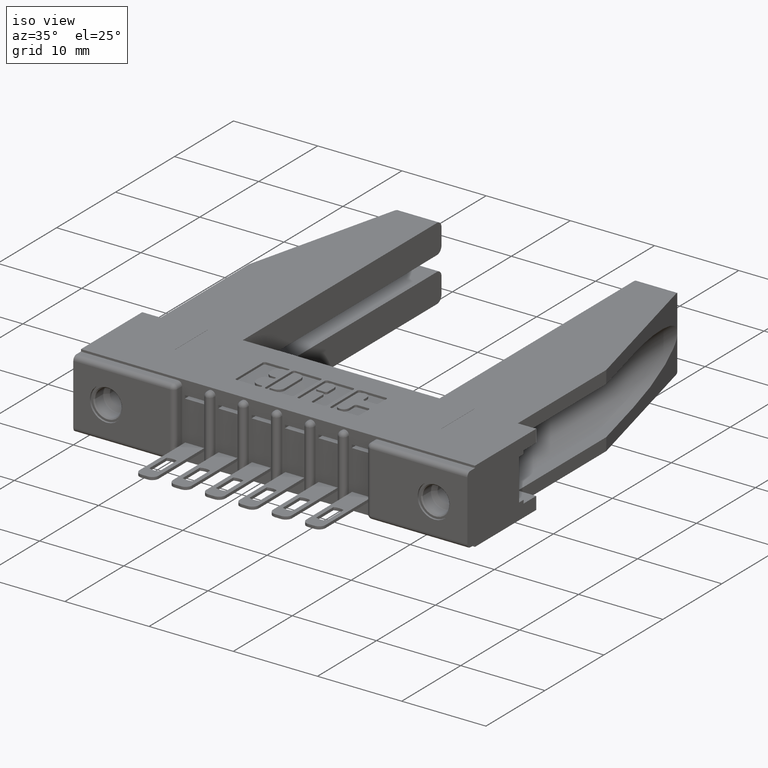
[diagram: clean part render]
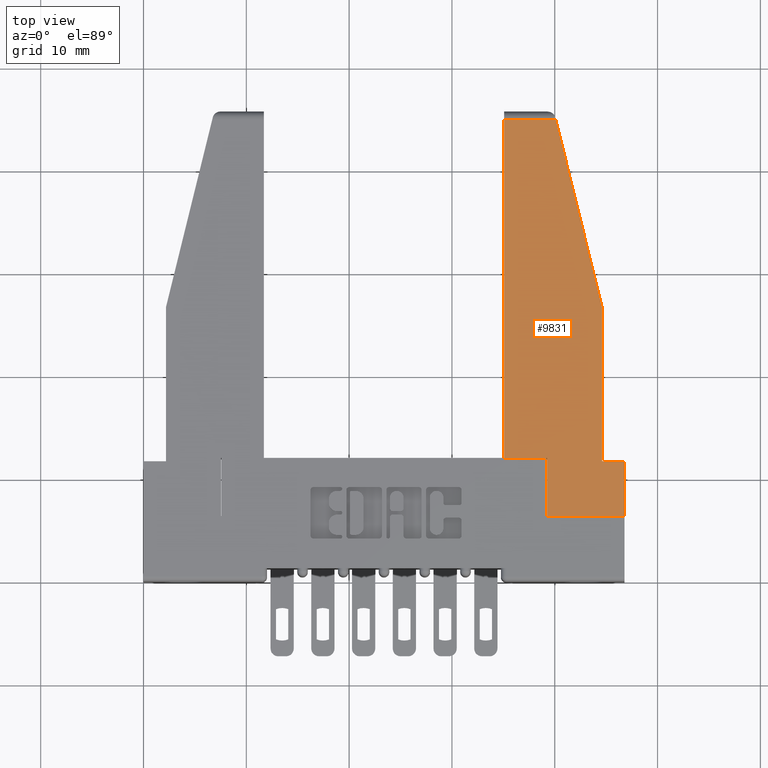
[diagram: tour spotlight — one face highlighted and labeled with its STEP entity id]
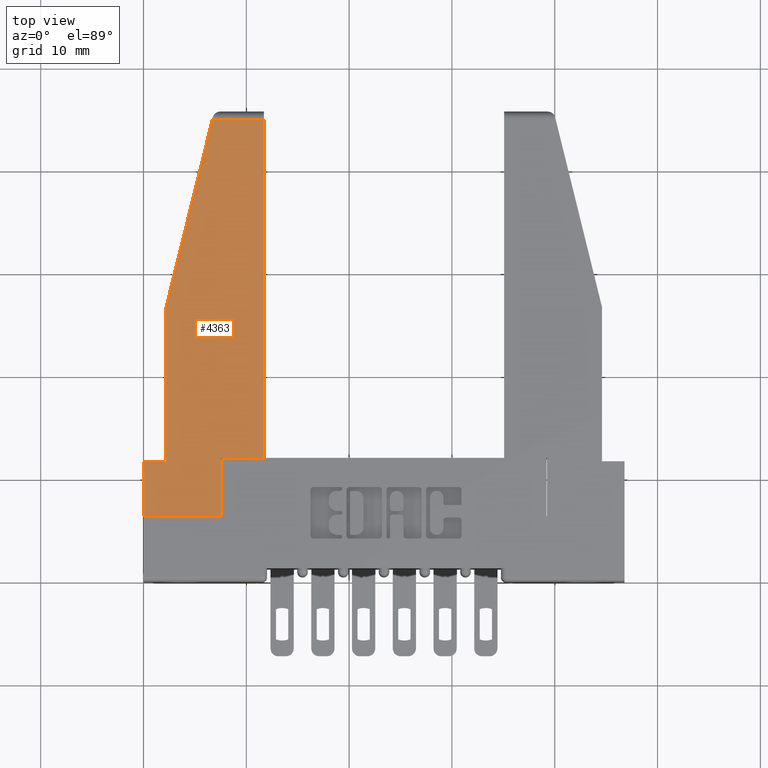
[diagram: tour spotlight — one face highlighted and labeled with its STEP entity id]
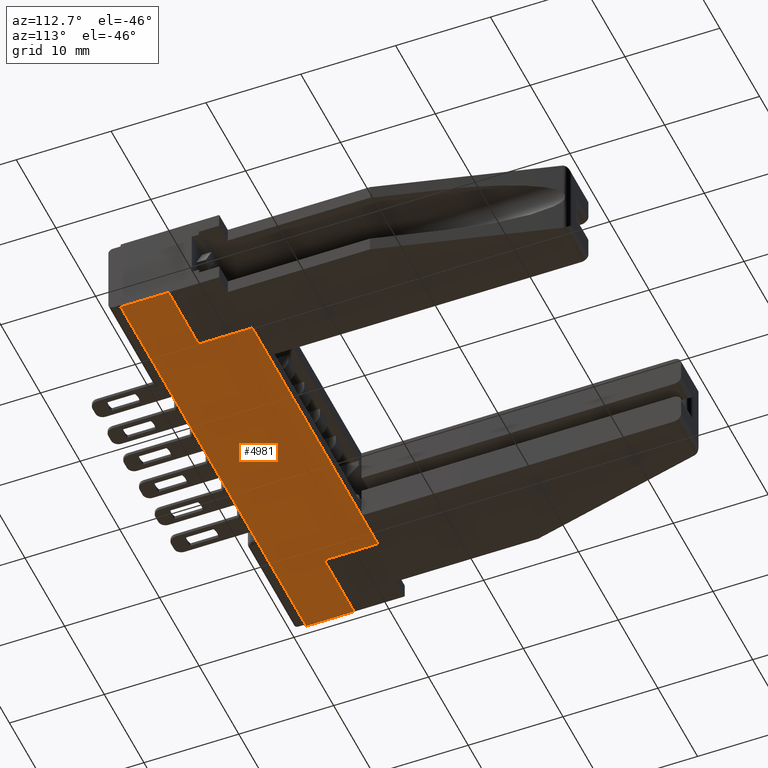
[diagram: tour spotlight — one face highlighted and labeled with its STEP entity id]
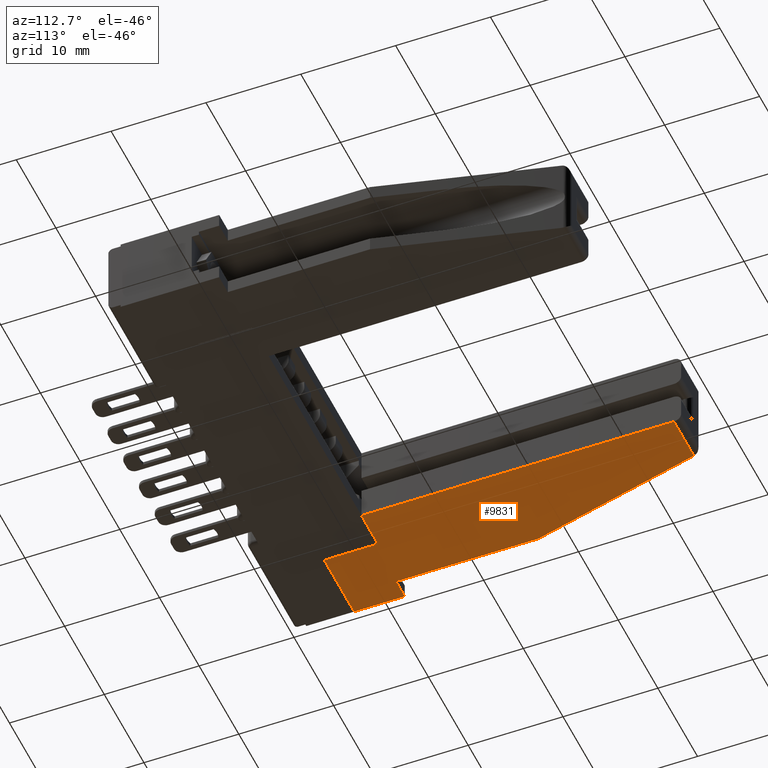
[diagram: tour spotlight — one face highlighted and labeled with its STEP entity id]
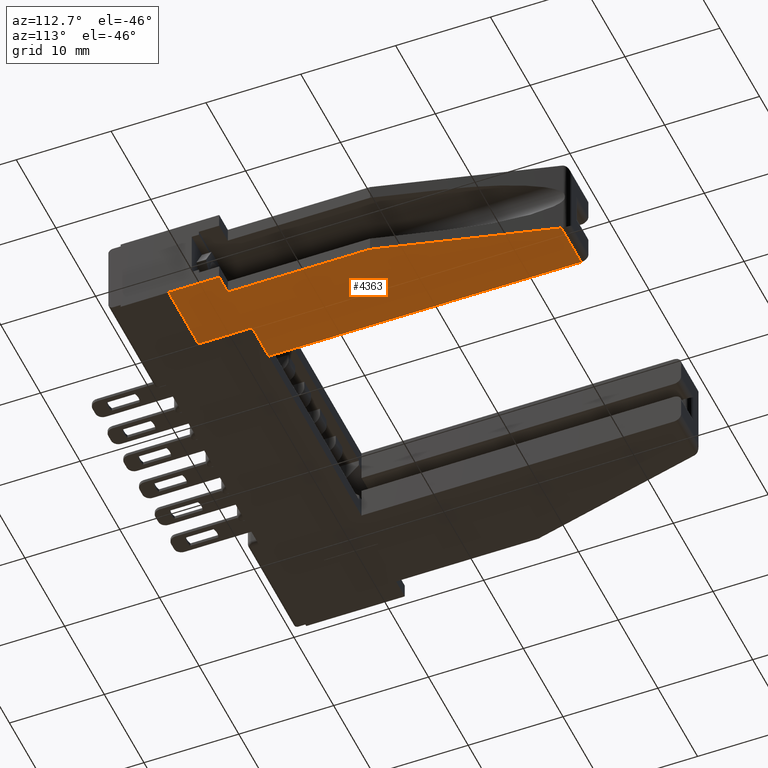
[diagram: tour spotlight — one face highlighted and labeled with its STEP entity id]
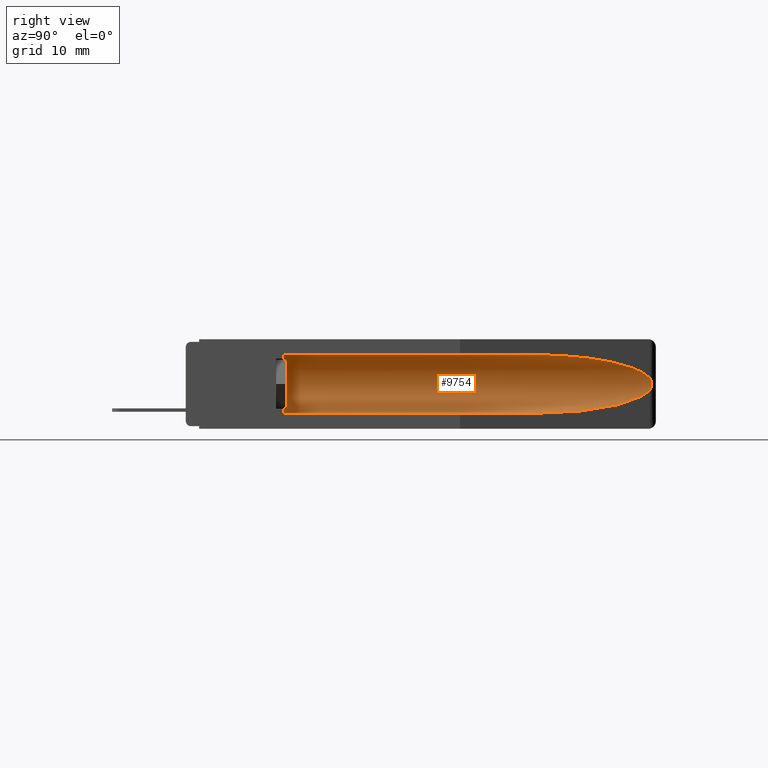
[diagram: tour spotlight — one face highlighted and labeled with its STEP entity id]
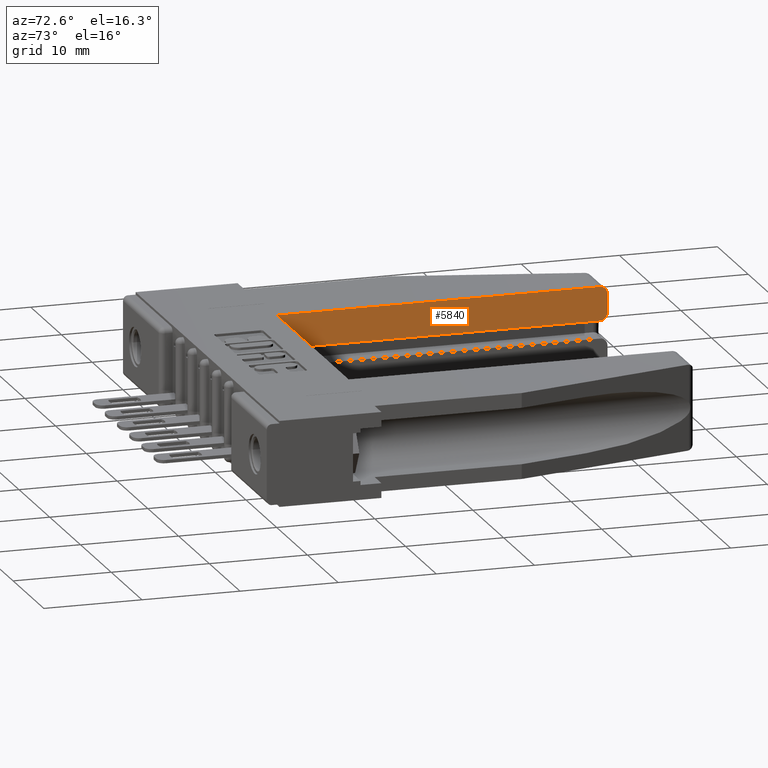
[diagram: tour spotlight — one face highlighted and labeled with its STEP entity id]
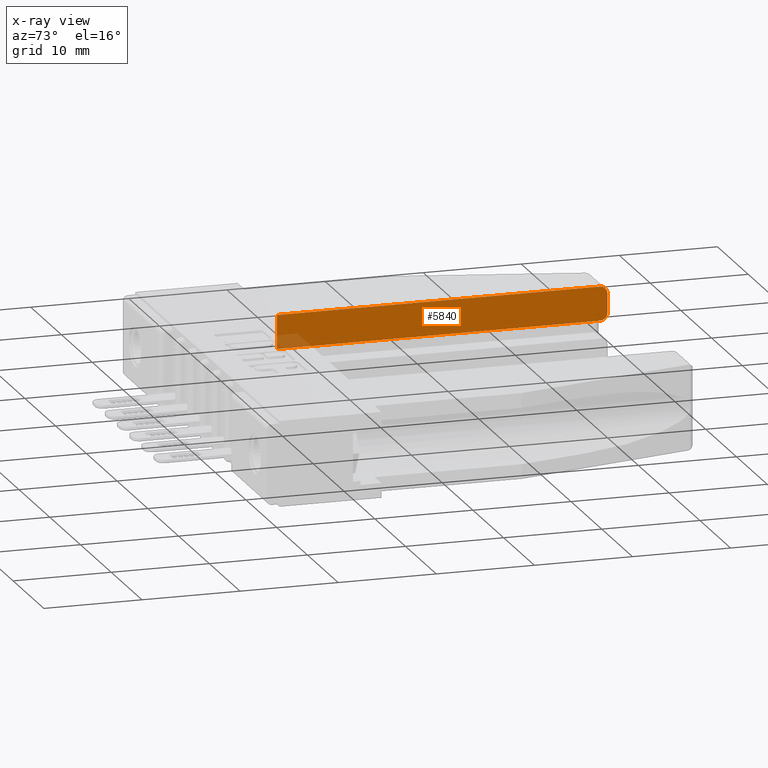
[diagram: x-ray of the same camera — body ghosted, this tour face saturated]
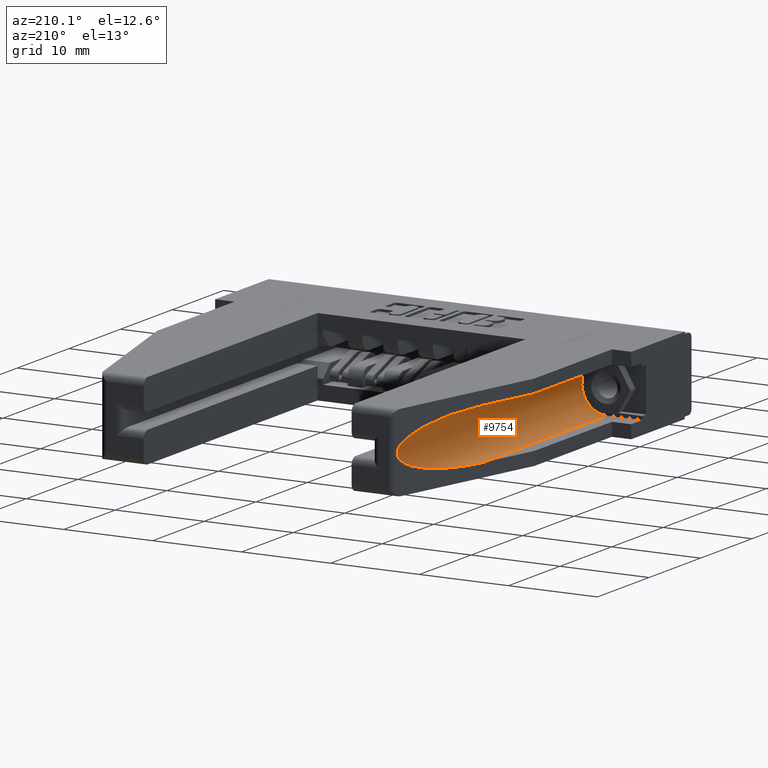
[diagram: tour spotlight — one face highlighted and labeled with its STEP entity id]
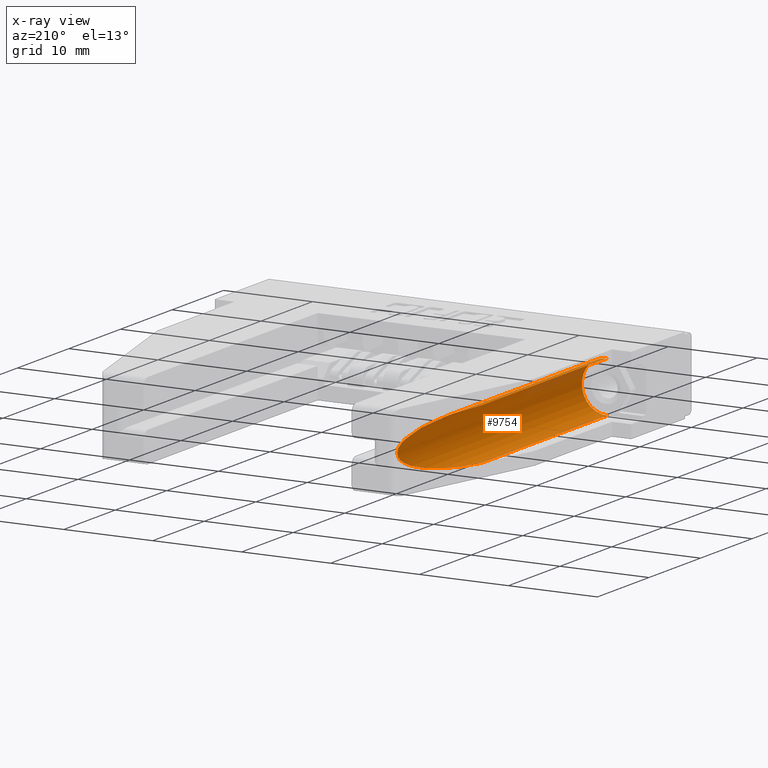
[diagram: x-ray of the same camera — body ghosted, this tour face saturated]
A machine part: a face-by-face anatomy tour. The part has 591 B-rep faces; the first image is the clean iso view, then the 8 largest visible faces are spotlighted one at a time (largest first), each with its STEP entity span.

Face 1 — top view, entity #9831. In plain terms, the highlighted planar face has unit normal (-0, -0, -1).
Definition (entity closure, byte-faithful):
#186 = VERTEX_POINT ( 'NONE', #1350 ) ;
#276 = ORIENTED_EDGE ( 'NONE', *, *, #1737, .T. ) ;
#461 = ORIENTED_EDGE ( 'NONE', *, *, #746, .F. ) ;
#631 = CARTESIAN_POINT ( 'NONE',  ( 0.2969999999999996000, 0.2229999999999990000, -0.3430000000000000300 ) ) ;
#746 = EDGE_CURVE ( 'NONE', #6837, #8287, #9292, .T. ) ;
#1024 = LINE ( 'NONE', #11476, #6672 ) ;
#1074 = CARTESIAN_POINT ( 'NONE',  ( 0.0000000000000000000, 0.0000000000000000000, -0.3430000000000000300 ) ) ;
#1307 = DIRECTION ( 'NONE',  ( 1.000000000000000000, 4.211209965453250600E-016, 2.218671295934087800E-031 ) ) ;
#1350 = CARTESIAN_POINT ( 'NONE',  ( 0.4610000000000025200, 1.519999999999998200, -0.3430000000000000300 ) ) ;
#1418 = ORIENTED_EDGE ( 'NONE', *, *, #6256, .F. ) ;
#1560 = VECTOR ( 'NONE', #1962, 39.37007874015748100 ) ;
#1737 = EDGE_CURVE ( 'NONE', #2661, #186, #1024, .T. ) ;
#1747 = VERTEX_POINT ( 'NONE', #10649 ) ;
#1962 = DIRECTION ( 'NONE',  ( -1.000000000000000000, -4.211209965453250600E-016, -2.218671295934087800E-031 ) ) ;
#2210 = FACE_OUTER_BOUND ( 'NONE', #9894, .T. ) ;
#2338 = DIRECTION ( 'NONE',  ( -0.2394884713086046800, -0.9708992080078484600, -1.641710291813238700E-017 ) ) ;
#2428 = EDGE_CURVE ( 'NONE', #6488, #186, #8681, .T. ) ;
#2471 = DIRECTION ( 'NONE',  ( -2.289879374839175700E-031, 1.690917325168891800E-017, 1.000000000000000000 ) ) ;
#2524 = VECTOR ( 'NONE', #10648, 39.37007874015748100 ) ;
#2661 = VERTEX_POINT ( 'NONE', #6896 ) ;
#2791 = ORIENTED_EDGE ( 'NONE', *, *, #5462, .F. ) ;
#2914 = CARTESIAN_POINT ( 'NONE',  ( 0.0000000000000000000, 0.2099999999999999100, -0.3430000000000000300 ) ) ;
#2964 = CARTESIAN_POINT ( 'NONE',  ( 0.4610000000000025200, 0.2229999999999990000, -0.3430000000000000300 ) ) ;
#3026 = VECTOR ( 'NONE', #3378, 39.37007874015748100 ) ;
#3151 = LINE ( 'NONE', #2914, #1560 ) ;
#3254 = CARTESIAN_POINT ( 'NONE',  ( 0.08600000000000011800, 0.7999999999999976000, -0.3430000000000000300 ) ) ;
#3378 = DIRECTION ( 'NONE',  ( 1.000000000000000000, 4.211209965453250600E-016, 2.218671295934087800E-031 ) ) ;
#3797 = DIRECTION ( 'NONE',  ( -6.795945692587973700E-016, -1.000000000000000000, -1.690917325168897600E-017 ) ) ;
#3805 = ORIENTED_EDGE ( 'NONE', *, *, #4236, .F. ) ;
#4236 = EDGE_CURVE ( 'NONE', #1747, #11291, #3151, .T. ) ;
#4652 = CARTESIAN_POINT ( 'NONE',  ( 0.0000000000000000000, 0.0000000000000000000, -0.3430000000000000300 ) ) ;
#4752 = CARTESIAN_POINT ( 'NONE',  ( 0.0000000000000000000, 0.2099999999999999100, -0.3430000000000000300 ) ) ;
#4761 = LINE ( 'NONE', #4752, #6653 ) ;
#4868 = CARTESIAN_POINT ( 'NONE',  ( 0.08600000000000011800, 0.7999999999999976000, -0.3430000000000000300 ) ) ;
#5181 = LINE ( 'NONE', #631, #3026 ) ;
#5275 = CARTESIAN_POINT ( 'NONE',  ( 0.2969999999999996000, 2.731847993664263200E-016, -0.3430000000000003600 ) ) ;
#5378 = ORIENTED_EDGE ( 'NONE', *, *, #8685, .F. ) ;
#5462 = EDGE_CURVE ( 'NONE', #2661, #11507, #8261, .T. ) ;
#5497 = VECTOR ( 'NONE', #2338, 39.37007874015748900 ) ;
#5748 = DIRECTION ( 'NONE',  ( 4.725876128539996400E-016, 1.000000000000000000, 1.690917325168898200E-017 ) ) ;
#5815 = EDGE_CURVE ( 'NONE', #11291, #9591, #4761, .T. ) ;
#6256 = EDGE_CURVE ( 'NONE', #8287, #6488, #5181, .T. ) ;
#6301 = ORIENTED_EDGE ( 'NONE', *, *, #2428, .F. ) ;
#6488 = VERTEX_POINT ( 'NONE', #10264 ) ;
#6553 = EDGE_CURVE ( 'NONE', #9591, #6837, #10403, .T. ) ;
#6653 = VECTOR ( 'NONE', #3797, 39.37007874015748100 ) ;
#6672 = VECTOR ( 'NONE', #1307, 39.37007874015748100 ) ;
#6837 = VERTEX_POINT ( 'NONE', #10688 ) ;
#6896 = CARTESIAN_POINT ( 'NONE',  ( 0.2635999999999998900, 1.519999999999998900, -0.3430000000000000300 ) ) ;
#7043 = PLANE ( 'NONE',  #11982 ) ;
#7256 = DIRECTION ( 'NONE',  ( 4.211209965453280200E-016, 1.000000000000000000, 1.690917325168898900E-017 ) ) ;
#7905 = CARTESIAN_POINT ( 'NONE',  ( 0.2710000000000004600, 1.549999999999998700, -0.3430000000000000300 ) ) ;
#8261 = LINE ( 'NONE', #7905, #5497 ) ;
#8287 = VERTEX_POINT ( 'NONE', #8351 ) ;
#8351 = CARTESIAN_POINT ( 'NONE',  ( 0.2969999999999996000, 0.2229999999999990000, -0.3430000000000000300 ) ) ;
#8433 = VECTOR ( 'NONE', #7256, 39.37007874015748100 ) ;
#8681 = LINE ( 'NONE', #2964, #10000 ) ;
#8685 = EDGE_CURVE ( 'NONE', #11507, #1747, #10939, .T. ) ;
#8910 = CARTESIAN_POINT ( 'NONE',  ( 0.0000000000000000000, 0.0000000000000000000, -0.3430000000000000300 ) ) ;
#9292 = LINE ( 'NONE', #5275, #8433 ) ;
#9591 = VERTEX_POINT ( 'NONE', #1074 ) ;
#9831 = ADVANCED_FACE ( 'NONE', ( #2210 ), #7043, .F. ) ;
#9894 = EDGE_LOOP ( 'NONE', ( #2791, #276, #6301, #1418, #461, #10361, #10854, #3805, #5378 ) ) ;
#10000 = VECTOR ( 'NONE', #5748, 39.37007874015748100 ) ;
#10037 = CARTESIAN_POINT ( 'NONE',  ( 0.0000000000000000000, 0.2099999999999999100, -0.3430000000000000300 ) ) ;
#10264 = CARTESIAN_POINT ( 'NONE',  ( 0.4610000000000025200, 0.2229999999999990000, -0.3430000000000000300 ) ) ;
#10361 = ORIENTED_EDGE ( 'NONE', *, *, #6553, .F. ) ;
#10403 = LINE ( 'NONE', #4652, #11269 ) ;
#10648 = DIRECTION ( 'NONE',  ( -4.500600642748225000E-016, -1.000000000000000000, -1.690917325168896400E-017 ) ) ;
#10649 = CARTESIAN_POINT ( 'NONE',  ( 0.08600000000000011800, 0.2099999999999999100, -0.3430000000000000300 ) ) ;
#10688 = CARTESIAN_POINT ( 'NONE',  ( 0.2969999999999996000, 2.731847993664263200E-016, -0.3430000000000003600 ) ) ;
#10701 = DIRECTION ( 'NONE',  ( 1.000000000000000000, 4.211209965453250600E-016, 2.218671295934087800E-031 ) ) ;
#10854 = ORIENTED_EDGE ( 'NONE', *, *, #5815, .F. ) ;
#10939 = LINE ( 'NONE', #3254, #2524 ) ;
#11143 = DIRECTION ( 'NONE',  ( 1.000000000000000000, 4.211209965453250600E-016, 2.218671295934087800E-031 ) ) ;
#11269 = VECTOR ( 'NONE', #11143, 39.37007874015748100 ) ;
#11291 = VERTEX_POINT ( 'NONE', #10037 ) ;
#11476 = CARTESIAN_POINT ( 'NONE',  ( 0.4610000000000025200, 1.519999999999998900, -0.3430000000000000300 ) ) ;
#11507 = VERTEX_POINT ( 'NONE', #4868 ) ;
#11982 = AXIS2_PLACEMENT_3D ( 'NONE', #8910, #2471, #10701 ) ;

Face 2 — top view, entity #4363. In plain terms, the highlighted planar face has unit normal (-0, 0, 1).
Definition (entity closure, byte-faithful):
#18 = CARTESIAN_POINT ( 'NONE',  ( 0.2710000000000004600, 1.549999999999998700, -1.365923996832131600E-016 ) ) ;
#81 = CARTESIAN_POINT ( 'NONE',  ( 0.4610000000000025200, 1.519999999999998200, 0.0000000000000000000 ) ) ;
#105 = FACE_OUTER_BOUND ( 'NONE', #2532, .T. ) ;
#752 = CARTESIAN_POINT ( 'NONE',  ( 0.0000000000000000000, 0.0000000000000000000, 0.0000000000000000000 ) ) ;
#786 = CARTESIAN_POINT ( 'NONE',  ( 0.2969999999999996000, 0.0000000000000000000, -2.731847993664263200E-016 ) ) ;
#889 = LINE ( 'NONE', #10769, #3071 ) ;
#985 = EDGE_CURVE ( 'NONE', #2152, #1294, #4368, .T. ) ;
#1142 = VECTOR ( 'NONE', #11417, 39.37007874015748100 ) ;
#1294 = VERTEX_POINT ( 'NONE', #7700 ) ;
#1327 = DIRECTION ( 'NONE',  ( -2.289879374839175700E-031, 1.690917325168891800E-017, 1.000000000000000000 ) ) ;
#1461 = ORIENTED_EDGE ( 'NONE', *, *, #2851, .T. ) ;
#1654 = EDGE_CURVE ( 'NONE', #9925, #11989, #2763, .T. ) ;
#1770 = CARTESIAN_POINT ( 'NONE',  ( 0.0000000000000000000, 0.0000000000000000000, 0.0000000000000000000 ) ) ;
#1887 = VECTOR ( 'NONE', #6921, 39.37007874015748100 ) ;
#2152 = VERTEX_POINT ( 'NONE', #4344 ) ;
#2272 = CARTESIAN_POINT ( 'NONE',  ( 0.0000000000000000000, 0.2099999999999999100, 0.0000000000000000000 ) ) ;
#2326 = CARTESIAN_POINT ( 'NONE',  ( 0.0000000000000000000, 1.519999999999998000, 2.731847993664263200E-016 ) ) ;
#2366 = ORIENTED_EDGE ( 'NONE', *, *, #4472, .T. ) ;
#2532 = EDGE_LOOP ( 'NONE', ( #6196, #2366, #2973, #2562, #11834, #9281, #6772, #1461, #11804 ) ) ;
#2562 = ORIENTED_EDGE ( 'NONE', *, *, #10578, .T. ) ;
#2763 = LINE ( 'NONE', #2272, #1887 ) ;
#2851 = EDGE_CURVE ( 'NONE', #9983, #10402, #3896, .T. ) ;
#2973 = ORIENTED_EDGE ( 'NONE', *, *, #985, .T. ) ;
#3071 = VECTOR ( 'NONE', #3484, 39.37007874015748100 ) ;
#3484 = DIRECTION ( 'NONE',  ( -4.500600642748225000E-016, -1.000000000000000000, -1.690917325168896400E-017 ) ) ;
#3823 = VECTOR ( 'NONE', #5562, 39.37007874015748100 ) ;
#3896 = LINE ( 'NONE', #9663, #1142 ) ;
#4084 = VERTEX_POINT ( 'NONE', #1770 ) ;
#4153 = VECTOR ( 'NONE', #4535, 39.37007874015748100 ) ;
#4160 = VERTEX_POINT ( 'NONE', #81 ) ;
#4168 = CARTESIAN_POINT ( 'NONE',  ( 0.4610000000000025200, 0.2229999999999990000, -1.365923996832131600E-016 ) ) ;
#4344 = CARTESIAN_POINT ( 'NONE',  ( 0.2635999999999998900, 1.519999999999998900, -1.365923996832131600E-016 ) ) ;
#4363 = ADVANCED_FACE ( 'NONE', ( #105 ), #10565, .T. ) ;
#4368 = LINE ( 'NONE', #18, #8575 ) ;
#4472 = EDGE_CURVE ( 'NONE', #4160, #2152, #6225, .T. ) ;
#4497 = VERTEX_POINT ( 'NONE', #4168 ) ;
#4535 = DIRECTION ( 'NONE',  ( 1.000000000000000000, 4.211209965453250600E-016, 2.218671295934087800E-031 ) ) ;
#5008 = CARTESIAN_POINT ( 'NONE',  ( 0.0000000000000000000, 0.0000000000000000000, 0.0000000000000000000 ) ) ;
#5562 = DIRECTION ( 'NONE',  ( 4.725876128539996400E-016, 1.000000000000000000, 1.690917325168898200E-017 ) ) ;
#5639 = DIRECTION ( 'NONE',  ( -0.2394884713086046800, -0.9708992080078484600, -1.641710291813238700E-017 ) ) ;
#5944 = DIRECTION ( 'NONE',  ( 1.000000000000000000, 4.211209965453250600E-016, 2.218671295934087800E-031 ) ) ;
#6102 = DIRECTION ( 'NONE',  ( -1.000000000000000000, -4.211209965453250600E-016, -2.218671295934087800E-031 ) ) ;
#6196 = ORIENTED_EDGE ( 'NONE', *, *, #11343, .T. ) ;
#6225 = LINE ( 'NONE', #2326, #7058 ) ;
#6324 = LINE ( 'NONE', #8145, #8920 ) ;
#6608 = LINE ( 'NONE', #11103, #4153 ) ;
#6717 = DIRECTION ( 'NONE',  ( -6.795945692587973700E-016, -1.000000000000000000, -1.690917325168897600E-017 ) ) ;
#6747 = CARTESIAN_POINT ( 'NONE',  ( 0.0000000000000000000, 0.2099999999999999100, 0.0000000000000000000 ) ) ;
#6772 = ORIENTED_EDGE ( 'NONE', *, *, #8105, .T. ) ;
#6921 = DIRECTION ( 'NONE',  ( -1.000000000000000000, -4.211209965453250600E-016, -2.218671295934087800E-031 ) ) ;
#7058 = VECTOR ( 'NONE', #6102, 39.37007874015748100 ) ;
#7106 = EDGE_CURVE ( 'NONE', #11989, #4084, #6324, .T. ) ;
#7327 = AXIS2_PLACEMENT_3D ( 'NONE', #5008, #1327, #5944 ) ;
#7620 = VECTOR ( 'NONE', #11851, 39.37007874015748100 ) ;
#7700 = CARTESIAN_POINT ( 'NONE',  ( 0.08600000000000011800, 0.7999999999999976000, -1.365923996832131600E-016 ) ) ;
#7958 = CARTESIAN_POINT ( 'NONE',  ( 0.08600000000000011800, 0.2099999999999999100, 0.0000000000000000000 ) ) ;
#8105 = EDGE_CURVE ( 'NONE', #4084, #9983, #10096, .T. ) ;
#8145 = CARTESIAN_POINT ( 'NONE',  ( 0.0000000000000000000, 0.2099999999999999100, 0.0000000000000000000 ) ) ;
#8186 = EDGE_CURVE ( 'NONE', #10402, #4497, #6608, .T. ) ;
#8575 = VECTOR ( 'NONE', #5639, 39.37007874015748900 ) ;
#8743 = LINE ( 'NONE', #9195, #3823 ) ;
#8920 = VECTOR ( 'NONE', #6717, 39.37007874015748100 ) ;
#9195 = CARTESIAN_POINT ( 'NONE',  ( 0.4610000000000025200, 0.2229999999999990000, -1.365923996832131600E-016 ) ) ;
#9281 = ORIENTED_EDGE ( 'NONE', *, *, #7106, .T. ) ;
#9663 = CARTESIAN_POINT ( 'NONE',  ( 0.2969999999999996000, 0.0000000000000000000, -2.731847993664263200E-016 ) ) ;
#9925 = VERTEX_POINT ( 'NONE', #7958 ) ;
#9983 = VERTEX_POINT ( 'NONE', #786 ) ;
#10096 = LINE ( 'NONE', #752, #7620 ) ;
#10402 = VERTEX_POINT ( 'NONE', #11504 ) ;
#10565 = PLANE ( 'NONE',  #7327 ) ;
#10578 = EDGE_CURVE ( 'NONE', #1294, #9925, #889, .T. ) ;
#10769 = CARTESIAN_POINT ( 'NONE',  ( 0.08600000000000011800, 0.7999999999999976000, -1.365923996832131600E-016 ) ) ;
#11103 = CARTESIAN_POINT ( 'NONE',  ( 0.2969999999999996000, 0.2229999999999990000, 2.731847993664263200E-016 ) ) ;
#11343 = EDGE_CURVE ( 'NONE', #4497, #4160, #8743, .T. ) ;
#11417 = DIRECTION ( 'NONE',  ( 4.211209965453280200E-016, 1.000000000000000000, 1.690917325168898900E-017 ) ) ;
#11504 = CARTESIAN_POINT ( 'NONE',  ( 0.2969999999999996000, 0.2229999999999990000, 2.731847993664263200E-016 ) ) ;
#11804 = ORIENTED_EDGE ( 'NONE', *, *, #8186, .T. ) ;
#11834 = ORIENTED_EDGE ( 'NONE', *, *, #1654, .T. ) ;
#11851 = DIRECTION ( 'NONE',  ( 1.000000000000000000, 4.211209965453250600E-016, 2.218671295934087800E-031 ) ) ;
#11989 = VERTEX_POINT ( 'NONE', #6747 ) ;

Face 3 — auxiliary view, entity #4981. In plain terms, the highlighted planar face has unit normal (0, 0, 1).
Definition (entity closure, byte-faithful):
#215 = AXIS2_PLACEMENT_3D ( 'NONE', #3099, #6927, #5110 ) ;
#284 = LINE ( 'NONE', #9947, #4192 ) ;
#313 = FACE_OUTER_BOUND ( 'NONE', #713, .T. ) ;
#702 = VERTEX_POINT ( 'NONE', #9075 ) ;
#713 = EDGE_LOOP ( 'NONE', ( #5163, #4748, #9780, #11826, #3095, #11046, #6590, #5176 ) ) ;
#871 = LINE ( 'NONE', #2761, #9851 ) ;
#969 = EDGE_CURVE ( 'NONE', #11238, #7827, #8991, .T. ) ;
#1124 = CARTESIAN_POINT ( 'NONE',  ( 0.0000000000000000000, 0.2499999999999999700, -0.3430000000000000300 ) ) ;
#1192 = EDGE_CURVE ( 'NONE', #3182, #7055, #3948, .T. ) ;
#1534 = CARTESIAN_POINT ( 'NONE',  ( 0.0000000000000000000, 0.2499999999999999700, -0.3430000000000000300 ) ) ;
#1940 = CARTESIAN_POINT ( 'NONE',  ( 1.544000000000000700, 0.2499999999999999700, -0.3430000000000000300 ) ) ;
#1982 = DIRECTION ( 'NONE',  ( -0.0000000000000000000, 1.000000000000000000, -0.0000000000000000000 ) ) ;
#2663 = EDGE_CURVE ( 'NONE', #11819, #9920, #284, .T. ) ;
#2761 = CARTESIAN_POINT ( 'NONE',  ( 0.4730000000000003600, 0.05099999999999999700, -0.3430000000000001400 ) ) ;
#2939 = EDGE_CURVE ( 'NONE', #11819, #4247, #6498, .T. ) ;
#3095 = ORIENTED_EDGE ( 'NONE', *, *, #2663, .T. ) ;
#3099 = CARTESIAN_POINT ( 'NONE',  ( 0.0000000000000000000, 0.4729999999999999800, -0.3430000000000000300 ) ) ;
#3145 = DIRECTION ( 'NONE',  ( -1.000000000000000000, -0.0000000000000000000, -0.0000000000000000000 ) ) ;
#3182 = VERTEX_POINT ( 'NONE', #4123 ) ;
#3323 = LINE ( 'NONE', #7618, #11587 ) ;
#3507 = CARTESIAN_POINT ( 'NONE',  ( 1.544000000000000700, 0.2499999999999999700, -0.3430000000000000300 ) ) ;
#3948 = LINE ( 'NONE', #7836, #9590 ) ;
#4123 = CARTESIAN_POINT ( 'NONE',  ( 1.842000000000000700, 0.2499999999999999700, -0.3430000000000000300 ) ) ;
#4192 = VECTOR ( 'NONE', #7963, 39.37007874015748100 ) ;
#4247 = VERTEX_POINT ( 'NONE', #6676 ) ;
#4452 = EDGE_CURVE ( 'NONE', #3182, #11238, #10103, .T. ) ;
#4748 = ORIENTED_EDGE ( 'NONE', *, *, #5355, .F. ) ;
#4981 = ADVANCED_FACE ( 'NONE', ( #313 ), #8762, .F. ) ;
#5027 = LINE ( 'NONE', #10516, #7926 ) ;
#5101 = DIRECTION ( 'NONE',  ( -0.0000000000000000000, -1.000000000000000000, -0.0000000000000000000 ) ) ;
#5110 = DIRECTION ( 'NONE',  ( 1.000000000000000000, 0.0000000000000000000, -0.0000000000000000000 ) ) ;
#5163 = ORIENTED_EDGE ( 'NONE', *, *, #1192, .T. ) ;
#5176 = ORIENTED_EDGE ( 'NONE', *, *, #4452, .F. ) ;
#5184 = DIRECTION ( 'NONE',  ( -0.0000000000000000000, -1.000000000000000000, -0.0000000000000000000 ) ) ;
#5355 = EDGE_CURVE ( 'NONE', #702, #7055, #871, .T. ) ;
#5513 = EDGE_CURVE ( 'NONE', #4247, #702, #3323, .T. ) ;
#5666 = CARTESIAN_POINT ( 'NONE',  ( 0.2979999999999998200, 0.2499999999999999700, -0.3430000000000000300 ) ) ;
#5667 = DIRECTION ( 'NONE',  ( 1.000000000000000000, 0.0000000000000000000, 0.0000000000000000000 ) ) ;
#5896 = CARTESIAN_POINT ( 'NONE',  ( 1.544000000000000700, 0.4729999999999999800, -0.3430000000000000300 ) ) ;
#6498 = LINE ( 'NONE', #1124, #12016 ) ;
#6590 = ORIENTED_EDGE ( 'NONE', *, *, #969, .F. ) ;
#6676 = CARTESIAN_POINT ( 'NONE',  ( 0.0000000000000000000, 0.2499999999999999700, -0.3430000000000000300 ) ) ;
#6927 = DIRECTION ( 'NONE',  ( 0.0000000000000000000, 0.0000000000000000000, 1.000000000000000000 ) ) ;
#7055 = VERTEX_POINT ( 'NONE', #9385 ) ;
#7083 = CARTESIAN_POINT ( 'NONE',  ( 0.2979999999999998200, 0.4729999999999999800, -0.3430000000000000300 ) ) ;
#7618 = CARTESIAN_POINT ( 'NONE',  ( 0.0000000000000000000, 0.4729999999999999800, -0.3430000000000000300 ) ) ;
#7820 = EDGE_CURVE ( 'NONE', #7827, #9920, #5027, .T. ) ;
#7827 = VERTEX_POINT ( 'NONE', #5896 ) ;
#7836 = CARTESIAN_POINT ( 'NONE',  ( 1.842000000000000700, 0.4729999999999999800, -0.3430000000000000300 ) ) ;
#7926 = VECTOR ( 'NONE', #3145, 39.37007874015748100 ) ;
#7963 = DIRECTION ( 'NONE',  ( -0.0000000000000000000, 1.000000000000000000, -0.0000000000000000000 ) ) ;
#8570 = DIRECTION ( 'NONE',  ( -1.000000000000000000, 0.0000000000000000000, 0.0000000000000000000 ) ) ;
#8762 = PLANE ( 'NONE',  #215 ) ;
#8991 = LINE ( 'NONE', #1940, #11032 ) ;
#9075 = CARTESIAN_POINT ( 'NONE',  ( 0.0000000000000000000, 0.05099999999999999700, -0.3430000000000000300 ) ) ;
#9385 = CARTESIAN_POINT ( 'NONE',  ( 1.842000000000000700, 0.05099999999999999700, -0.3430000000000000300 ) ) ;
#9590 = VECTOR ( 'NONE', #5184, 39.37007874015748100 ) ;
#9780 = ORIENTED_EDGE ( 'NONE', *, *, #5513, .F. ) ;
#9851 = VECTOR ( 'NONE', #5667, 39.37007874015748100 ) ;
#9920 = VERTEX_POINT ( 'NONE', #7083 ) ;
#9947 = CARTESIAN_POINT ( 'NONE',  ( 0.2979999999999998200, 0.2499999999999999700, -0.3430000000000000300 ) ) ;
#10103 = LINE ( 'NONE', #1534, #10822 ) ;
#10516 = CARTESIAN_POINT ( 'NONE',  ( 0.0000000000000000000, 0.4729999999999999800, -0.3430000000000000300 ) ) ;
#10761 = DIRECTION ( 'NONE',  ( -1.000000000000000000, 0.0000000000000000000, 0.0000000000000000000 ) ) ;
#10822 = VECTOR ( 'NONE', #10761, 39.37007874015748100 ) ;
#11032 = VECTOR ( 'NONE', #1982, 39.37007874015748100 ) ;
#11046 = ORIENTED_EDGE ( 'NONE', *, *, #7820, .F. ) ;
#11238 = VERTEX_POINT ( 'NONE', #3507 ) ;
#11587 = VECTOR ( 'NONE', #5101, 39.37007874015748100 ) ;
#11819 = VERTEX_POINT ( 'NONE', #5666 ) ;
#11826 = ORIENTED_EDGE ( 'NONE', *, *, #2939, .F. ) ;
#12016 = VECTOR ( 'NONE', #8570, 39.37007874015748100 ) ;

Face 4 — auxiliary view, entity #9831. In plain terms, the highlighted planar face has unit normal (-0, 0, 1).
Definition (entity closure, byte-faithful):
#186 = VERTEX_POINT ( 'NONE', #1350 ) ;
#276 = ORIENTED_EDGE ( 'NONE', *, *, #1737, .T. ) ;
#461 = ORIENTED_EDGE ( 'NONE', *, *, #746, .F. ) ;
#631 = CARTESIAN_POINT ( 'NONE',  ( 0.2969999999999996000, 0.2229999999999990000, -0.3430000000000000300 ) ) ;
#746 = EDGE_CURVE ( 'NONE', #6837, #8287, #9292, .T. ) ;
#1024 = LINE ( 'NONE', #11476, #6672 ) ;
#1074 = CARTESIAN_POINT ( 'NONE',  ( 0.0000000000000000000, 0.0000000000000000000, -0.3430000000000000300 ) ) ;
#1307 = DIRECTION ( 'NONE',  ( 1.000000000000000000, 4.211209965453250600E-016, 2.218671295934087800E-031 ) ) ;
#1350 = CARTESIAN_POINT ( 'NONE',  ( 0.4610000000000025200, 1.519999999999998200, -0.3430000000000000300 ) ) ;
#1418 = ORIENTED_EDGE ( 'NONE', *, *, #6256, .F. ) ;
#1560 = VECTOR ( 'NONE', #1962, 39.37007874015748100 ) ;
#1737 = EDGE_CURVE ( 'NONE', #2661, #186, #1024, .T. ) ;
#1747 = VERTEX_POINT ( 'NONE', #10649 ) ;
#1962 = DIRECTION ( 'NONE',  ( -1.000000000000000000, -4.211209965453250600E-016, -2.218671295934087800E-031 ) ) ;
#2210 = FACE_OUTER_BOUND ( 'NONE', #9894, .T. ) ;
#2338 = DIRECTION ( 'NONE',  ( -0.2394884713086046800, -0.9708992080078484600, -1.641710291813238700E-017 ) ) ;
#2428 = EDGE_CURVE ( 'NONE', #6488, #186, #8681, .T. ) ;
#2471 = DIRECTION ( 'NONE',  ( -2.289879374839175700E-031, 1.690917325168891800E-017, 1.000000000000000000 ) ) ;
#2524 = VECTOR ( 'NONE', #10648, 39.37007874015748100 ) ;
#2661 = VERTEX_POINT ( 'NONE', #6896 ) ;
#2791 = ORIENTED_EDGE ( 'NONE', *, *, #5462, .F. ) ;
#2914 = CARTESIAN_POINT ( 'NONE',  ( 0.0000000000000000000, 0.2099999999999999100, -0.3430000000000000300 ) ) ;
#2964 = CARTESIAN_POINT ( 'NONE',  ( 0.4610000000000025200, 0.2229999999999990000, -0.3430000000000000300 ) ) ;
#3026 = VECTOR ( 'NONE', #3378, 39.37007874015748100 ) ;
#3151 = LINE ( 'NONE', #2914, #1560 ) ;
#3254 = CARTESIAN_POINT ( 'NONE',  ( 0.08600000000000011800, 0.7999999999999976000, -0.3430000000000000300 ) ) ;
#3378 = DIRECTION ( 'NONE',  ( 1.000000000000000000, 4.211209965453250600E-016, 2.218671295934087800E-031 ) ) ;
#3797 = DIRECTION ( 'NONE',  ( -6.795945692587973700E-016, -1.000000000000000000, -1.690917325168897600E-017 ) ) ;
#3805 = ORIENTED_EDGE ( 'NONE', *, *, #4236, .F. ) ;
#4236 = EDGE_CURVE ( 'NONE', #1747, #11291, #3151, .T. ) ;
#4652 = CARTESIAN_POINT ( 'NONE',  ( 0.0000000000000000000, 0.0000000000000000000, -0.3430000000000000300 ) ) ;
#4752 = CARTESIAN_POINT ( 'NONE',  ( 0.0000000000000000000, 0.2099999999999999100, -0.3430000000000000300 ) ) ;
#4761 = LINE ( 'NONE', #4752, #6653 ) ;
#4868 = CARTESIAN_POINT ( 'NONE',  ( 0.08600000000000011800, 0.7999999999999976000, -0.3430000000000000300 ) ) ;
#5181 = LINE ( 'NONE', #631, #3026 ) ;
#5275 = CARTESIAN_POINT ( 'NONE',  ( 0.2969999999999996000, 2.731847993664263200E-016, -0.3430000000000003600 ) ) ;
#5378 = ORIENTED_EDGE ( 'NONE', *, *, #8685, .F. ) ;
#5462 = EDGE_CURVE ( 'NONE', #2661, #11507, #8261, .T. ) ;
#5497 = VECTOR ( 'NONE', #2338, 39.37007874015748900 ) ;
#5748 = DIRECTION ( 'NONE',  ( 4.725876128539996400E-016, 1.000000000000000000, 1.690917325168898200E-017 ) ) ;
#5815 = EDGE_CURVE ( 'NONE', #11291, #9591, #4761, .T. ) ;
#6256 = EDGE_CURVE ( 'NONE', #8287, #6488, #5181, .T. ) ;
#6301 = ORIENTED_EDGE ( 'NONE', *, *, #2428, .F. ) ;
#6488 = VERTEX_POINT ( 'NONE', #10264 ) ;
#6553 = EDGE_CURVE ( 'NONE', #9591, #6837, #10403, .T. ) ;
#6653 = VECTOR ( 'NONE', #3797, 39.37007874015748100 ) ;
#6672 = VECTOR ( 'NONE', #1307, 39.37007874015748100 ) ;
#6837 = VERTEX_POINT ( 'NONE', #10688 ) ;
#6896 = CARTESIAN_POINT ( 'NONE',  ( 0.2635999999999998900, 1.519999999999998900, -0.3430000000000000300 ) ) ;
#7043 = PLANE ( 'NONE',  #11982 ) ;
#7256 = DIRECTION ( 'NONE',  ( 4.211209965453280200E-016, 1.000000000000000000, 1.690917325168898900E-017 ) ) ;
#7905 = CARTESIAN_POINT ( 'NONE',  ( 0.2710000000000004600, 1.549999999999998700, -0.3430000000000000300 ) ) ;
#8261 = LINE ( 'NONE', #7905, #5497 ) ;
#8287 = VERTEX_POINT ( 'NONE', #8351 ) ;
#8351 = CARTESIAN_POINT ( 'NONE',  ( 0.2969999999999996000, 0.2229999999999990000, -0.3430000000000000300 ) ) ;
#8433 = VECTOR ( 'NONE', #7256, 39.37007874015748100 ) ;
#8681 = LINE ( 'NONE', #2964, #10000 ) ;
#8685 = EDGE_CURVE ( 'NONE', #11507, #1747, #10939, .T. ) ;
#8910 = CARTESIAN_POINT ( 'NONE',  ( 0.0000000000000000000, 0.0000000000000000000, -0.3430000000000000300 ) ) ;
#9292 = LINE ( 'NONE', #5275, #8433 ) ;
#9591 = VERTEX_POINT ( 'NONE', #1074 ) ;
#9831 = ADVANCED_FACE ( 'NONE', ( #2210 ), #7043, .F. ) ;
#9894 = EDGE_LOOP ( 'NONE', ( #2791, #276, #6301, #1418, #461, #10361, #10854, #3805, #5378 ) ) ;
#10000 = VECTOR ( 'NONE', #5748, 39.37007874015748100 ) ;
#10037 = CARTESIAN_POINT ( 'NONE',  ( 0.0000000000000000000, 0.2099999999999999100, -0.3430000000000000300 ) ) ;
#10264 = CARTESIAN_POINT ( 'NONE',  ( 0.4610000000000025200, 0.2229999999999990000, -0.3430000000000000300 ) ) ;
#10361 = ORIENTED_EDGE ( 'NONE', *, *, #6553, .F. ) ;
#10403 = LINE ( 'NONE', #4652, #11269 ) ;
#10648 = DIRECTION ( 'NONE',  ( -4.500600642748225000E-016, -1.000000000000000000, -1.690917325168896400E-017 ) ) ;
#10649 = CARTESIAN_POINT ( 'NONE',  ( 0.08600000000000011800, 0.2099999999999999100, -0.3430000000000000300 ) ) ;
#10688 = CARTESIAN_POINT ( 'NONE',  ( 0.2969999999999996000, 2.731847993664263200E-016, -0.3430000000000003600 ) ) ;
#10701 = DIRECTION ( 'NONE',  ( 1.000000000000000000, 4.211209965453250600E-016, 2.218671295934087800E-031 ) ) ;
#10854 = ORIENTED_EDGE ( 'NONE', *, *, #5815, .F. ) ;
#10939 = LINE ( 'NONE', #3254, #2524 ) ;
#11143 = DIRECTION ( 'NONE',  ( 1.000000000000000000, 4.211209965453250600E-016, 2.218671295934087800E-031 ) ) ;
#11269 = VECTOR ( 'NONE', #11143, 39.37007874015748100 ) ;
#11291 = VERTEX_POINT ( 'NONE', #10037 ) ;
#11476 = CARTESIAN_POINT ( 'NONE',  ( 0.4610000000000025200, 1.519999999999998900, -0.3430000000000000300 ) ) ;
#11507 = VERTEX_POINT ( 'NONE', #4868 ) ;
#11982 = AXIS2_PLACEMENT_3D ( 'NONE', #8910, #2471, #10701 ) ;

Face 5 — auxiliary view, entity #4363. In plain terms, the highlighted planar face has unit normal (-0, -0, -1).
Definition (entity closure, byte-faithful):
#18 = CARTESIAN_POINT ( 'NONE',  ( 0.2710000000000004600, 1.549999999999998700, -1.365923996832131600E-016 ) ) ;
#81 = CARTESIAN_POINT ( 'NONE',  ( 0.4610000000000025200, 1.519999999999998200, 0.0000000000000000000 ) ) ;
#105 = FACE_OUTER_BOUND ( 'NONE', #2532, .T. ) ;
#752 = CARTESIAN_POINT ( 'NONE',  ( 0.0000000000000000000, 0.0000000000000000000, 0.0000000000000000000 ) ) ;
#786 = CARTESIAN_POINT ( 'NONE',  ( 0.2969999999999996000, 0.0000000000000000000, -2.731847993664263200E-016 ) ) ;
#889 = LINE ( 'NONE', #10769, #3071 ) ;
#985 = EDGE_CURVE ( 'NONE', #2152, #1294, #4368, .T. ) ;
#1142 = VECTOR ( 'NONE', #11417, 39.37007874015748100 ) ;
#1294 = VERTEX_POINT ( 'NONE', #7700 ) ;
#1327 = DIRECTION ( 'NONE',  ( -2.289879374839175700E-031, 1.690917325168891800E-017, 1.000000000000000000 ) ) ;
#1461 = ORIENTED_EDGE ( 'NONE', *, *, #2851, .T. ) ;
#1654 = EDGE_CURVE ( 'NONE', #9925, #11989, #2763, .T. ) ;
#1770 = CARTESIAN_POINT ( 'NONE',  ( 0.0000000000000000000, 0.0000000000000000000, 0.0000000000000000000 ) ) ;
#1887 = VECTOR ( 'NONE', #6921, 39.37007874015748100 ) ;
#2152 = VERTEX_POINT ( 'NONE', #4344 ) ;
#2272 = CARTESIAN_POINT ( 'NONE',  ( 0.0000000000000000000, 0.2099999999999999100, 0.0000000000000000000 ) ) ;
#2326 = CARTESIAN_POINT ( 'NONE',  ( 0.0000000000000000000, 1.519999999999998000, 2.731847993664263200E-016 ) ) ;
#2366 = ORIENTED_EDGE ( 'NONE', *, *, #4472, .T. ) ;
#2532 = EDGE_LOOP ( 'NONE', ( #6196, #2366, #2973, #2562, #11834, #9281, #6772, #1461, #11804 ) ) ;
#2562 = ORIENTED_EDGE ( 'NONE', *, *, #10578, .T. ) ;
#2763 = LINE ( 'NONE', #2272, #1887 ) ;
#2851 = EDGE_CURVE ( 'NONE', #9983, #10402, #3896, .T. ) ;
#2973 = ORIENTED_EDGE ( 'NONE', *, *, #985, .T. ) ;
#3071 = VECTOR ( 'NONE', #3484, 39.37007874015748100 ) ;
#3484 = DIRECTION ( 'NONE',  ( -4.500600642748225000E-016, -1.000000000000000000, -1.690917325168896400E-017 ) ) ;
#3823 = VECTOR ( 'NONE', #5562, 39.37007874015748100 ) ;
#3896 = LINE ( 'NONE', #9663, #1142 ) ;
#4084 = VERTEX_POINT ( 'NONE', #1770 ) ;
#4153 = VECTOR ( 'NONE', #4535, 39.37007874015748100 ) ;
#4160 = VERTEX_POINT ( 'NONE', #81 ) ;
#4168 = CARTESIAN_POINT ( 'NONE',  ( 0.4610000000000025200, 0.2229999999999990000, -1.365923996832131600E-016 ) ) ;
#4344 = CARTESIAN_POINT ( 'NONE',  ( 0.2635999999999998900, 1.519999999999998900, -1.365923996832131600E-016 ) ) ;
#4363 = ADVANCED_FACE ( 'NONE', ( #105 ), #10565, .T. ) ;
#4368 = LINE ( 'NONE', #18, #8575 ) ;
#4472 = EDGE_CURVE ( 'NONE', #4160, #2152, #6225, .T. ) ;
#4497 = VERTEX_POINT ( 'NONE', #4168 ) ;
#4535 = DIRECTION ( 'NONE',  ( 1.000000000000000000, 4.211209965453250600E-016, 2.218671295934087800E-031 ) ) ;
#5008 = CARTESIAN_POINT ( 'NONE',  ( 0.0000000000000000000, 0.0000000000000000000, 0.0000000000000000000 ) ) ;
#5562 = DIRECTION ( 'NONE',  ( 4.725876128539996400E-016, 1.000000000000000000, 1.690917325168898200E-017 ) ) ;
#5639 = DIRECTION ( 'NONE',  ( -0.2394884713086046800, -0.9708992080078484600, -1.641710291813238700E-017 ) ) ;
#5944 = DIRECTION ( 'NONE',  ( 1.000000000000000000, 4.211209965453250600E-016, 2.218671295934087800E-031 ) ) ;
#6102 = DIRECTION ( 'NONE',  ( -1.000000000000000000, -4.211209965453250600E-016, -2.218671295934087800E-031 ) ) ;
#6196 = ORIENTED_EDGE ( 'NONE', *, *, #11343, .T. ) ;
#6225 = LINE ( 'NONE', #2326, #7058 ) ;
#6324 = LINE ( 'NONE', #8145, #8920 ) ;
#6608 = LINE ( 'NONE', #11103, #4153 ) ;
#6717 = DIRECTION ( 'NONE',  ( -6.795945692587973700E-016, -1.000000000000000000, -1.690917325168897600E-017 ) ) ;
#6747 = CARTESIAN_POINT ( 'NONE',  ( 0.0000000000000000000, 0.2099999999999999100, 0.0000000000000000000 ) ) ;
#6772 = ORIENTED_EDGE ( 'NONE', *, *, #8105, .T. ) ;
#6921 = DIRECTION ( 'NONE',  ( -1.000000000000000000, -4.211209965453250600E-016, -2.218671295934087800E-031 ) ) ;
#7058 = VECTOR ( 'NONE', #6102, 39.37007874015748100 ) ;
#7106 = EDGE_CURVE ( 'NONE', #11989, #4084, #6324, .T. ) ;
#7327 = AXIS2_PLACEMENT_3D ( 'NONE', #5008, #1327, #5944 ) ;
#7620 = VECTOR ( 'NONE', #11851, 39.37007874015748100 ) ;
#7700 = CARTESIAN_POINT ( 'NONE',  ( 0.08600000000000011800, 0.7999999999999976000, -1.365923996832131600E-016 ) ) ;
#7958 = CARTESIAN_POINT ( 'NONE',  ( 0.08600000000000011800, 0.2099999999999999100, 0.0000000000000000000 ) ) ;
#8105 = EDGE_CURVE ( 'NONE', #4084, #9983, #10096, .T. ) ;
#8145 = CARTESIAN_POINT ( 'NONE',  ( 0.0000000000000000000, 0.2099999999999999100, 0.0000000000000000000 ) ) ;
#8186 = EDGE_CURVE ( 'NONE', #10402, #4497, #6608, .T. ) ;
#8575 = VECTOR ( 'NONE', #5639, 39.37007874015748900 ) ;
#8743 = LINE ( 'NONE', #9195, #3823 ) ;
#8920 = VECTOR ( 'NONE', #6717, 39.37007874015748100 ) ;
#9195 = CARTESIAN_POINT ( 'NONE',  ( 0.4610000000000025200, 0.2229999999999990000, -1.365923996832131600E-016 ) ) ;
#9281 = ORIENTED_EDGE ( 'NONE', *, *, #7106, .T. ) ;
#9663 = CARTESIAN_POINT ( 'NONE',  ( 0.2969999999999996000, 0.0000000000000000000, -2.731847993664263200E-016 ) ) ;
#9925 = VERTEX_POINT ( 'NONE', #7958 ) ;
#9983 = VERTEX_POINT ( 'NONE', #786 ) ;
#10096 = LINE ( 'NONE', #752, #7620 ) ;
#10402 = VERTEX_POINT ( 'NONE', #11504 ) ;
#10565 = PLANE ( 'NONE',  #7327 ) ;
#10578 = EDGE_CURVE ( 'NONE', #1294, #9925, #889, .T. ) ;
#10769 = CARTESIAN_POINT ( 'NONE',  ( 0.08600000000000011800, 0.7999999999999976000, -1.365923996832131600E-016 ) ) ;
#11103 = CARTESIAN_POINT ( 'NONE',  ( 0.2969999999999996000, 0.2229999999999990000, 2.731847993664263200E-016 ) ) ;
#11343 = EDGE_CURVE ( 'NONE', #4497, #4160, #8743, .T. ) ;
#11417 = DIRECTION ( 'NONE',  ( 4.211209965453280200E-016, 1.000000000000000000, 1.690917325168898900E-017 ) ) ;
#11504 = CARTESIAN_POINT ( 'NONE',  ( 0.2969999999999996000, 0.2229999999999990000, 2.731847993664263200E-016 ) ) ;
#11804 = ORIENTED_EDGE ( 'NONE', *, *, #8186, .T. ) ;
#11834 = ORIENTED_EDGE ( 'NONE', *, *, #1654, .T. ) ;
#11851 = DIRECTION ( 'NONE',  ( 1.000000000000000000, 4.211209965453250600E-016, 2.218671295934087800E-031 ) ) ;
#11989 = VERTEX_POINT ( 'NONE', #6747 ) ;

Face 6 — right view, entity #9754. In plain terms, the highlighted cylindrical surface (edge-blend (fillet) strip) has radius 2.8575 mm, axis along (-0, 1, -0).
Definition (entity closure, byte-faithful):
#114 = VERTEX_POINT ( 'NONE', #8266 ) ;
#291 = EDGE_CURVE ( 'NONE', #7706, #2125, #8980, .T. ) ;
#867 = CARTESIAN_POINT ( 'NONE',  ( 0.1549999999999998600, 0.1259999999999999500, -0.1714999999999998700 ) ) ;
#1029 = CARTESIAN_POINT ( 'NONE',  ( 0.1549999999999998600, -0.3075443462566647100, -0.05900000000000003900 ) ) ;
#1069 = CARTESIAN_POINT ( 'NONE',  ( 0.2653722146876833500, 1.527184654139256900, -0.1497233100555697400 ) ) ;
#1153 = CARTESIAN_POINT ( 'NONE',  ( 0.1549999999999998600, 1.079729729729725700, -0.05900000000000021200 ) ) ;
#1181 = EDGE_CURVE ( 'NONE', #7536, #7706, #11178, .T. ) ;
#1564 = CARTESIAN_POINT ( 'NONE',  ( 0.2659695340301827000, 1.529606219041280900, -0.1527507425476385700 ) ) ;
#1893 = CARTESIAN_POINT ( 'NONE',  ( 0.1549999999999998600, 1.079729729729725700, -0.2839999999999998100 ) ) ;
#2125 = VERTEX_POINT ( 'NONE', #3220 ) ;
#2164 = CARTESIAN_POINT ( 'NONE',  ( 0.1549999999999998600, -0.3075443462566647100, -0.1715000000000000100 ) ) ;
#2519 =( BOUNDED_CURVE ( )  B_SPLINE_CURVE ( 3, ( #3541, #10943, #9112, #6330 ),
 .UNSPECIFIED., .F., .T. ) 
 B_SPLINE_CURVE_WITH_KNOTS ( ( 4, 4 ),
 ( 0.1948002606593458900, 1.570796326794896600 ),
 .UNSPECIFIED. ) 
 CURVE ( )  GEOMETRIC_REPRESENTATION_ITEM ( )  RATIONAL_B_SPLINE_CURVE ( ( 1.000000000000000000, 0.8483458633392271200, 0.8483458633392271200, 1.000000000000000000 ) ) 
 REPRESENTATION_ITEM ( '' )  );
#2555 = ORIENTED_EDGE ( 'NONE', *, *, #3428, .T. ) ;
#2845 = EDGE_CURVE ( 'NONE', #2125, #114, #4670, .T. ) ;
#2868 = CIRCLE ( 'NONE', #3252, 0.1124999999999999800 ) ;
#2927 = CARTESIAN_POINT ( 'NONE',  ( 0.2672997671973899600, 1.532692632294006400, -0.1791713265570007200 ) ) ;
#3155 = EDGE_LOOP ( 'NONE', ( #7730, #11342, #2555, #4260, #5646, #6447 ) ) ;
#3220 = CARTESIAN_POINT ( 'NONE',  ( 0.2653722146876833500, 1.527184654139256900, -0.1497233100555697400 ) ) ;
#3245 = EDGE_CURVE ( 'NONE', #4101, #7004, #7802, .T. ) ;
#3252 = AXIS2_PLACEMENT_3D ( 'NONE', #867, #11022, #5311 ) ;
#3415 = CARTESIAN_POINT ( 'NONE',  ( 0.2665402951778607600, 1.530919410688853700, -0.1563644579457764100 ) ) ;
#3428 = EDGE_CURVE ( 'NONE', #114, #7004, #2519, .T. ) ;
#3517 = AXIS2_PLACEMENT_3D ( 'NONE', #2164, #9582, #4000 ) ;
#3541 = CARTESIAN_POINT ( 'NONE',  ( 0.2653722146876833500, 1.527184654139256900, -0.1932766899444299500 ) ) ;
#4000 = DIRECTION ( 'NONE',  ( 0.0000000000000000000, 0.0000000000000000000, 1.000000000000000000 ) ) ;
#4040 = CARTESIAN_POINT ( 'NONE',  ( 0.2659676665268745900, 1.529598648082110000, -0.1902587226409270000 ) ) ;
#4101 = VERTEX_POINT ( 'NONE', #4484 ) ;
#4260 = ORIENTED_EDGE ( 'NONE', *, *, #3245, .F. ) ;
#4484 = CARTESIAN_POINT ( 'NONE',  ( 0.1549999999999998600, 0.1259999999999999500, -0.2839999999999998100 ) ) ;
#4670 = B_SPLINE_CURVE_WITH_KNOTS ( 'NONE', 3,
 ( #10095, #1564, #3415, #9729, #11641, #9937, #2927, #7837, #4040, #9972 ),
 .UNSPECIFIED., .F., .F.,
 ( 4, 2, 2, 2, 4 ),
 ( 1.301042606982605300E-018, 0.0002913334948949132600, 0.0005826669897898252100, 0.0008740004846847372200, 0.001165333979579649100 ),
 .UNSPECIFIED. ) ;
#5311 = DIRECTION ( 'NONE',  ( 0.0000000000000000000, 0.0000000000000000000, 1.000000000000000000 ) ) ;
#5315 = CARTESIAN_POINT ( 'NONE',  ( 0.1549999999999998600, -0.3075443462566648200, -0.2839999999999999700 ) ) ;
#5618 = VECTOR ( 'NONE', #8993, 39.37007874015748100 ) ;
#5646 = ORIENTED_EDGE ( 'NONE', *, *, #6321, .T. ) ;
#6321 = EDGE_CURVE ( 'NONE', #4101, #7536, #2868, .T. ) ;
#6330 = CARTESIAN_POINT ( 'NONE',  ( 0.1549999999999998600, 1.079729729729725700, -0.2839999999999998100 ) ) ;
#6399 = VECTOR ( 'NONE', #11232, 39.37007874015748100 ) ;
#6424 = CYLINDRICAL_SURFACE ( 'NONE', #3517, 0.1124999999999999800 ) ;
#6447 = ORIENTED_EDGE ( 'NONE', *, *, #1181, .T. ) ;
#7004 = VERTEX_POINT ( 'NONE', #1893 ) ;
#7352 = CARTESIAN_POINT ( 'NONE',  ( 0.1549999999999998600, 0.1259999999999999500, -0.05900000000000003900 ) ) ;
#7536 = VERTEX_POINT ( 'NONE', #7352 ) ;
#7706 = VERTEX_POINT ( 'NONE', #9461 ) ;
#7730 = ORIENTED_EDGE ( 'NONE', *, *, #291, .T. ) ;
#7802 = LINE ( 'NONE', #5315, #5618 ) ;
#7837 = CARTESIAN_POINT ( 'NONE',  ( 0.2665477326809424500, 1.530937437894281300, -0.1865728330937871700 ) ) ;
#8266 = CARTESIAN_POINT ( 'NONE',  ( 0.2653722146876833500, 1.527184654139256900, -0.1932766899444299500 ) ) ;
#8450 = FACE_OUTER_BOUND ( 'NONE', #3155, .T. ) ;
#8980 =( BOUNDED_CURVE ( )  B_SPLINE_CURVE ( 3, ( #1153, #11439, #10427, #1069 ),
 .UNSPECIFIED., .F., .F. ) 
 B_SPLINE_CURVE_WITH_KNOTS ( ( 4, 4 ),
 ( 4.712388980384689700, 6.088385046520239800 ),
 .UNSPECIFIED. ) 
 CURVE ( )  GEOMETRIC_REPRESENTATION_ITEM ( )  RATIONAL_B_SPLINE_CURVE ( ( 1.000000000000000000, 0.8483458633392273500, 0.8483458633392273500, 1.000000000000000000 ) ) 
 REPRESENTATION_ITEM ( '' )  );
#8993 = DIRECTION ( 'NONE',  ( 4.211209965453280200E-016, 1.000000000000000000, 1.690917325168900100E-017 ) ) ;
#9112 = CARTESIAN_POINT ( 'NONE',  ( 0.2111379438000718100, 1.307315988378664500, -0.2839999999999998600 ) ) ;
#9461 = CARTESIAN_POINT ( 'NONE',  ( 0.1549999999999998600, 1.079729729729725700, -0.05900000000000021200 ) ) ;
#9582 = DIRECTION ( 'NONE',  ( 4.211209965453280700E-016, 1.000000000000000000, 1.690917325168900100E-017 ) ) ;
#9729 = CARTESIAN_POINT ( 'NONE',  ( 0.2673007932318822700, 1.532695689982143100, -0.1638283690697840100 ) ) ;
#9754 = ADVANCED_FACE ( 'NONE', ( #8450 ), #6424, .F. ) ;
#9937 = CARTESIAN_POINT ( 'NONE',  ( 0.2675005102363450800, 1.533079420563985100, -0.1753409430533590900 ) ) ;
#9972 = CARTESIAN_POINT ( 'NONE',  ( 0.2653722146876833500, 1.527184654139256900, -0.1932766899444299500 ) ) ;
#10095 = CARTESIAN_POINT ( 'NONE',  ( 0.2653722146876833500, 1.527184654139256900, -0.1497233100555697400 ) ) ;
#10427 = CARTESIAN_POINT ( 'NONE',  ( 0.2545055604987774300, 1.483130650670712300, -0.09464713952022185700 ) ) ;
#10943 = CARTESIAN_POINT ( 'NONE',  ( 0.2545055604987774800, 1.483130650670713100, -0.2483528604797778100 ) ) ;
#11022 = DIRECTION ( 'NONE',  ( -4.211209965453280700E-016, -1.000000000000000000, -1.690917325168900100E-017 ) ) ;
#11178 = LINE ( 'NONE', #1029, #6399 ) ;
#11232 = DIRECTION ( 'NONE',  ( 4.211209965453280200E-016, 1.000000000000000000, 1.690917325168900100E-017 ) ) ;
#11342 = ORIENTED_EDGE ( 'NONE', *, *, #2845, .T. ) ;
#11439 = CARTESIAN_POINT ( 'NONE',  ( 0.2111379438000717800, 1.307315988378664000, -0.05899999999999985800 ) ) ;
#11641 = CARTESIAN_POINT ( 'NONE',  ( 0.2674994877860731900, 1.533077309800848300, -0.1676292255492844700 ) ) ;

Face 7 — auxiliary view, entity #5840. An x-ray twin of the same camera follows (body ghosted, this face saturated) — the face is partly hidden behind the body. In plain terms, the highlighted planar face has unit normal (1, -0, 0).
Definition (entity closure, byte-faithful):
#81 = CARTESIAN_POINT ( 'NONE',  ( 0.4610000000000025200, 1.519999999999998200, 0.0000000000000000000 ) ) ;
#153 = DIRECTION ( 'NONE',  ( 1.972152263052529500E-031, 1.690917325168892100E-017, 1.000000000000000000 ) ) ;
#333 = EDGE_CURVE ( 'NONE', #7841, #2500, #1765, .T. ) ;
#677 = ORIENTED_EDGE ( 'NONE', *, *, #11343, .F. ) ;
#1765 = CIRCLE ( 'NONE', #10343, 0.02999999999999995400 ) ;
#1844 = PLANE ( 'NONE',  #9616 ) ;
#2500 = VERTEX_POINT ( 'NONE', #9156 ) ;
#2723 = LINE ( 'NONE', #3265, #6905 ) ;
#2827 = ORIENTED_EDGE ( 'NONE', *, *, #10510, .T. ) ;
#2869 = EDGE_CURVE ( 'NONE', #2989, #4497, #11582, .T. ) ;
#2943 = EDGE_CURVE ( 'NONE', #2500, #11436, #4754, .T. ) ;
#2989 = VERTEX_POINT ( 'NONE', #3103 ) ;
#3103 = CARTESIAN_POINT ( 'NONE',  ( 0.4610000000000025200, 0.2229999999999990000, -0.1360000000000001800 ) ) ;
#3265 = CARTESIAN_POINT ( 'NONE',  ( 0.4610000000000025200, 0.2229999999999990000, -0.1360000000000001800 ) ) ;
#3313 = FACE_OUTER_BOUND ( 'NONE', #4986, .T. ) ;
#3357 = CIRCLE ( 'NONE', #7629, 0.02999999999999995400 ) ;
#3571 = ORIENTED_EDGE ( 'NONE', *, *, #2869, .F. ) ;
#3723 = DIRECTION ( 'NONE',  ( 4.725876128539997400E-016, 1.000000000000000000, 1.690917325168899800E-017 ) ) ;
#3823 = VECTOR ( 'NONE', #5562, 39.37007874015748100 ) ;
#4160 = VERTEX_POINT ( 'NONE', #81 ) ;
#4168 = CARTESIAN_POINT ( 'NONE',  ( 0.4610000000000025200, 0.2229999999999990000, -1.365923996832131600E-016 ) ) ;
#4323 = VECTOR ( 'NONE', #153, 39.37007874015748100 ) ;
#4497 = VERTEX_POINT ( 'NONE', #4168 ) ;
#4711 = DIRECTION ( 'NONE',  ( 1.000000000000000000, -4.725876128539997400E-016, 2.076255138123910700E-031 ) ) ;
#4754 = LINE ( 'NONE', #7683, #8949 ) ;
#4834 = DIRECTION ( 'NONE',  ( 1.972152263052529500E-031, 1.690917325168892100E-017, 1.000000000000000000 ) ) ;
#4986 = EDGE_LOOP ( 'NONE', ( #10721, #2827, #677, #3571, #7667, #11915 ) ) ;
#5562 = DIRECTION ( 'NONE',  ( 4.725876128539996400E-016, 1.000000000000000000, 1.690917325168898200E-017 ) ) ;
#5610 = CARTESIAN_POINT ( 'NONE',  ( 0.4610000000000025200, 0.2229999999999990000, -0.3430000000000000300 ) ) ;
#5840 = ADVANCED_FACE ( 'NONE', ( #3313 ), #1844, .T. ) ;
#6191 = DIRECTION ( 'NONE',  ( 1.000000000000000000, 3.696543802366543300E-016, 2.218671295934087800E-031 ) ) ;
#6215 = EDGE_CURVE ( 'NONE', #7841, #2989, #2723, .T. ) ;
#6905 = VECTOR ( 'NONE', #7046, 39.37007874015748100 ) ;
#7046 = DIRECTION ( 'NONE',  ( -4.725876128539996400E-016, -1.000000000000000000, -8.124244363752811300E-017 ) ) ;
#7629 = AXIS2_PLACEMENT_3D ( 'NONE', #8854, #6191, #8017 ) ;
#7667 = ORIENTED_EDGE ( 'NONE', *, *, #6215, .F. ) ;
#7683 = CARTESIAN_POINT ( 'NONE',  ( 0.4610000000000025200, 1.549999999999998700, -0.3430000000000000300 ) ) ;
#7841 = VERTEX_POINT ( 'NONE', #10482 ) ;
#8017 = DIRECTION ( 'NONE',  ( 0.0000000000000000000, 1.000000000000000000, 0.0000000000000000000 ) ) ;
#8283 = CARTESIAN_POINT ( 'NONE',  ( 0.4610000000000025200, 1.549999999999998700, -0.03000000000000002300 ) ) ;
#8743 = LINE ( 'NONE', #9195, #3823 ) ;
#8854 = CARTESIAN_POINT ( 'NONE',  ( 0.4610000000000025200, 1.519999999999998900, -0.03000000000000002300 ) ) ;
#8949 = VECTOR ( 'NONE', #4834, 39.37007874015748100 ) ;
#9156 = CARTESIAN_POINT ( 'NONE',  ( 0.4610000000000025200, 1.549999999999998700, -0.1059999999999999100 ) ) ;
#9195 = CARTESIAN_POINT ( 'NONE',  ( 0.4610000000000025200, 0.2229999999999990000, -1.365923996832131600E-016 ) ) ;
#9616 = AXIS2_PLACEMENT_3D ( 'NONE', #5610, #4711, #3723 ) ;
#10343 = AXIS2_PLACEMENT_3D ( 'NONE', #10388, #11315, #10503 ) ;
#10388 = CARTESIAN_POINT ( 'NONE',  ( 0.4610000000000025200, 1.519999999999998900, -0.1059999999999999100 ) ) ;
#10482 = CARTESIAN_POINT ( 'NONE',  ( 0.4610000000000025200, 1.519999999999998200, -0.1359999999999999000 ) ) ;
#10503 = DIRECTION ( 'NONE',  ( 0.0000000000000000000, 1.000000000000000000, 0.0000000000000000000 ) ) ;
#10510 = EDGE_CURVE ( 'NONE', #11436, #4160, #3357, .T. ) ;
#10721 = ORIENTED_EDGE ( 'NONE', *, *, #2943, .T. ) ;
#11315 = DIRECTION ( 'NONE',  ( 1.000000000000000000, 3.696543802366543300E-016, 2.218671295934087800E-031 ) ) ;
#11343 = EDGE_CURVE ( 'NONE', #4497, #4160, #8743, .T. ) ;
#11436 = VERTEX_POINT ( 'NONE', #8283 ) ;
#11582 = LINE ( 'NONE', #11999, #4323 ) ;
#11915 = ORIENTED_EDGE ( 'NONE', *, *, #333, .T. ) ;
#11999 = CARTESIAN_POINT ( 'NONE',  ( 0.4610000000000025200, 0.2229999999999990000, -0.3430000000000000300 ) ) ;

Face 8 — auxiliary view, entity #9754. An x-ray twin of the same camera follows (body ghosted, this face saturated) — the face is partly hidden behind the body. In plain terms, the highlighted cylindrical surface (edge-blend (fillet) strip) has radius 2.8575 mm, axis along (0, 1, 0).
Definition (entity closure, byte-faithful):
#114 = VERTEX_POINT ( 'NONE', #8266 ) ;
#291 = EDGE_CURVE ( 'NONE', #7706, #2125, #8980, .T. ) ;
#867 = CARTESIAN_POINT ( 'NONE',  ( 0.1549999999999998600, 0.1259999999999999500, -0.1714999999999998700 ) ) ;
#1029 = CARTESIAN_POINT ( 'NONE',  ( 0.1549999999999998600, -0.3075443462566647100, -0.05900000000000003900 ) ) ;
#1069 = CARTESIAN_POINT ( 'NONE',  ( 0.2653722146876833500, 1.527184654139256900, -0.1497233100555697400 ) ) ;
#1153 = CARTESIAN_POINT ( 'NONE',  ( 0.1549999999999998600, 1.079729729729725700, -0.05900000000000021200 ) ) ;
#1181 = EDGE_CURVE ( 'NONE', #7536, #7706, #11178, .T. ) ;
#1564 = CARTESIAN_POINT ( 'NONE',  ( 0.2659695340301827000, 1.529606219041280900, -0.1527507425476385700 ) ) ;
#1893 = CARTESIAN_POINT ( 'NONE',  ( 0.1549999999999998600, 1.079729729729725700, -0.2839999999999998100 ) ) ;
#2125 = VERTEX_POINT ( 'NONE', #3220 ) ;
#2164 = CARTESIAN_POINT ( 'NONE',  ( 0.1549999999999998600, -0.3075443462566647100, -0.1715000000000000100 ) ) ;
#2519 =( BOUNDED_CURVE ( )  B_SPLINE_CURVE ( 3, ( #3541, #10943, #9112, #6330 ),
 .UNSPECIFIED., .F., .T. ) 
 B_SPLINE_CURVE_WITH_KNOTS ( ( 4, 4 ),
 ( 0.1948002606593458900, 1.570796326794896600 ),
 .UNSPECIFIED. ) 
 CURVE ( )  GEOMETRIC_REPRESENTATION_ITEM ( )  RATIONAL_B_SPLINE_CURVE ( ( 1.000000000000000000, 0.8483458633392271200, 0.8483458633392271200, 1.000000000000000000 ) ) 
 REPRESENTATION_ITEM ( '' )  );
#2555 = ORIENTED_EDGE ( 'NONE', *, *, #3428, .T. ) ;
#2845 = EDGE_CURVE ( 'NONE', #2125, #114, #4670, .T. ) ;
#2868 = CIRCLE ( 'NONE', #3252, 0.1124999999999999800 ) ;
#2927 = CARTESIAN_POINT ( 'NONE',  ( 0.2672997671973899600, 1.532692632294006400, -0.1791713265570007200 ) ) ;
#3155 = EDGE_LOOP ( 'NONE', ( #7730, #11342, #2555, #4260, #5646, #6447 ) ) ;
#3220 = CARTESIAN_POINT ( 'NONE',  ( 0.2653722146876833500, 1.527184654139256900, -0.1497233100555697400 ) ) ;
#3245 = EDGE_CURVE ( 'NONE', #4101, #7004, #7802, .T. ) ;
#3252 = AXIS2_PLACEMENT_3D ( 'NONE', #867, #11022, #5311 ) ;
#3415 = CARTESIAN_POINT ( 'NONE',  ( 0.2665402951778607600, 1.530919410688853700, -0.1563644579457764100 ) ) ;
#3428 = EDGE_CURVE ( 'NONE', #114, #7004, #2519, .T. ) ;
#3517 = AXIS2_PLACEMENT_3D ( 'NONE', #2164, #9582, #4000 ) ;
#3541 = CARTESIAN_POINT ( 'NONE',  ( 0.2653722146876833500, 1.527184654139256900, -0.1932766899444299500 ) ) ;
#4000 = DIRECTION ( 'NONE',  ( 0.0000000000000000000, 0.0000000000000000000, 1.000000000000000000 ) ) ;
#4040 = CARTESIAN_POINT ( 'NONE',  ( 0.2659676665268745900, 1.529598648082110000, -0.1902587226409270000 ) ) ;
#4101 = VERTEX_POINT ( 'NONE', #4484 ) ;
#4260 = ORIENTED_EDGE ( 'NONE', *, *, #3245, .F. ) ;
#4484 = CARTESIAN_POINT ( 'NONE',  ( 0.1549999999999998600, 0.1259999999999999500, -0.2839999999999998100 ) ) ;
#4670 = B_SPLINE_CURVE_WITH_KNOTS ( 'NONE', 3,
 ( #10095, #1564, #3415, #9729, #11641, #9937, #2927, #7837, #4040, #9972 ),
 .UNSPECIFIED., .F., .F.,
 ( 4, 2, 2, 2, 4 ),
 ( 1.301042606982605300E-018, 0.0002913334948949132600, 0.0005826669897898252100, 0.0008740004846847372200, 0.001165333979579649100 ),
 .UNSPECIFIED. ) ;
#5311 = DIRECTION ( 'NONE',  ( 0.0000000000000000000, 0.0000000000000000000, 1.000000000000000000 ) ) ;
#5315 = CARTESIAN_POINT ( 'NONE',  ( 0.1549999999999998600, -0.3075443462566648200, -0.2839999999999999700 ) ) ;
#5618 = VECTOR ( 'NONE', #8993, 39.37007874015748100 ) ;
#5646 = ORIENTED_EDGE ( 'NONE', *, *, #6321, .T. ) ;
#6321 = EDGE_CURVE ( 'NONE', #4101, #7536, #2868, .T. ) ;
#6330 = CARTESIAN_POINT ( 'NONE',  ( 0.1549999999999998600, 1.079729729729725700, -0.2839999999999998100 ) ) ;
#6399 = VECTOR ( 'NONE', #11232, 39.37007874015748100 ) ;
#6424 = CYLINDRICAL_SURFACE ( 'NONE', #3517, 0.1124999999999999800 ) ;
#6447 = ORIENTED_EDGE ( 'NONE', *, *, #1181, .T. ) ;
#7004 = VERTEX_POINT ( 'NONE', #1893 ) ;
#7352 = CARTESIAN_POINT ( 'NONE',  ( 0.1549999999999998600, 0.1259999999999999500, -0.05900000000000003900 ) ) ;
#7536 = VERTEX_POINT ( 'NONE', #7352 ) ;
#7706 = VERTEX_POINT ( 'NONE', #9461 ) ;
#7730 = ORIENTED_EDGE ( 'NONE', *, *, #291, .T. ) ;
#7802 = LINE ( 'NONE', #5315, #5618 ) ;
#7837 = CARTESIAN_POINT ( 'NONE',  ( 0.2665477326809424500, 1.530937437894281300, -0.1865728330937871700 ) ) ;
#8266 = CARTESIAN_POINT ( 'NONE',  ( 0.2653722146876833500, 1.527184654139256900, -0.1932766899444299500 ) ) ;
#8450 = FACE_OUTER_BOUND ( 'NONE', #3155, .T. ) ;
#8980 =( BOUNDED_CURVE ( )  B_SPLINE_CURVE ( 3, ( #1153, #11439, #10427, #1069 ),
 .UNSPECIFIED., .F., .F. ) 
 B_SPLINE_CURVE_WITH_KNOTS ( ( 4, 4 ),
 ( 4.712388980384689700, 6.088385046520239800 ),
 .UNSPECIFIED. ) 
 CURVE ( )  GEOMETRIC_REPRESENTATION_ITEM ( )  RATIONAL_B_SPLINE_CURVE ( ( 1.000000000000000000, 0.8483458633392273500, 0.8483458633392273500, 1.000000000000000000 ) ) 
 REPRESENTATION_ITEM ( '' )  );
#8993 = DIRECTION ( 'NONE',  ( 4.211209965453280200E-016, 1.000000000000000000, 1.690917325168900100E-017 ) ) ;
#9112 = CARTESIAN_POINT ( 'NONE',  ( 0.2111379438000718100, 1.307315988378664500, -0.2839999999999998600 ) ) ;
#9461 = CARTESIAN_POINT ( 'NONE',  ( 0.1549999999999998600, 1.079729729729725700, -0.05900000000000021200 ) ) ;
#9582 = DIRECTION ( 'NONE',  ( 4.211209965453280700E-016, 1.000000000000000000, 1.690917325168900100E-017 ) ) ;
#9729 = CARTESIAN_POINT ( 'NONE',  ( 0.2673007932318822700, 1.532695689982143100, -0.1638283690697840100 ) ) ;
#9754 = ADVANCED_FACE ( 'NONE', ( #8450 ), #6424, .F. ) ;
#9937 = CARTESIAN_POINT ( 'NONE',  ( 0.2675005102363450800, 1.533079420563985100, -0.1753409430533590900 ) ) ;
#9972 = CARTESIAN_POINT ( 'NONE',  ( 0.2653722146876833500, 1.527184654139256900, -0.1932766899444299500 ) ) ;
#10095 = CARTESIAN_POINT ( 'NONE',  ( 0.2653722146876833500, 1.527184654139256900, -0.1497233100555697400 ) ) ;
#10427 = CARTESIAN_POINT ( 'NONE',  ( 0.2545055604987774300, 1.483130650670712300, -0.09464713952022185700 ) ) ;
#10943 = CARTESIAN_POINT ( 'NONE',  ( 0.2545055604987774800, 1.483130650670713100, -0.2483528604797778100 ) ) ;
#11022 = DIRECTION ( 'NONE',  ( -4.211209965453280700E-016, -1.000000000000000000, -1.690917325168900100E-017 ) ) ;
#11178 = LINE ( 'NONE', #1029, #6399 ) ;
#11232 = DIRECTION ( 'NONE',  ( 4.211209965453280200E-016, 1.000000000000000000, 1.690917325168900100E-017 ) ) ;
#11342 = ORIENTED_EDGE ( 'NONE', *, *, #2845, .T. ) ;
#11439 = CARTESIAN_POINT ( 'NONE',  ( 0.2111379438000717800, 1.307315988378664000, -0.05899999999999985800 ) ) ;
#11641 = CARTESIAN_POINT ( 'NONE',  ( 0.2674994877860731900, 1.533077309800848300, -0.1676292255492844700 ) ) ;